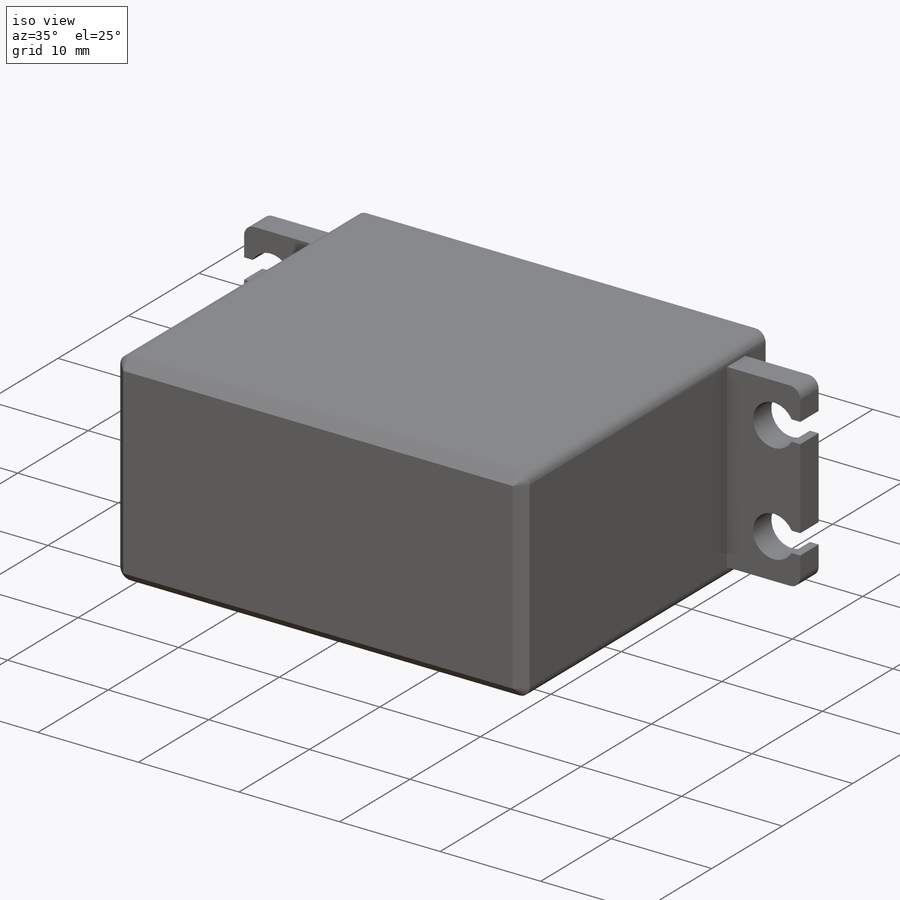
[diagram: iso view]
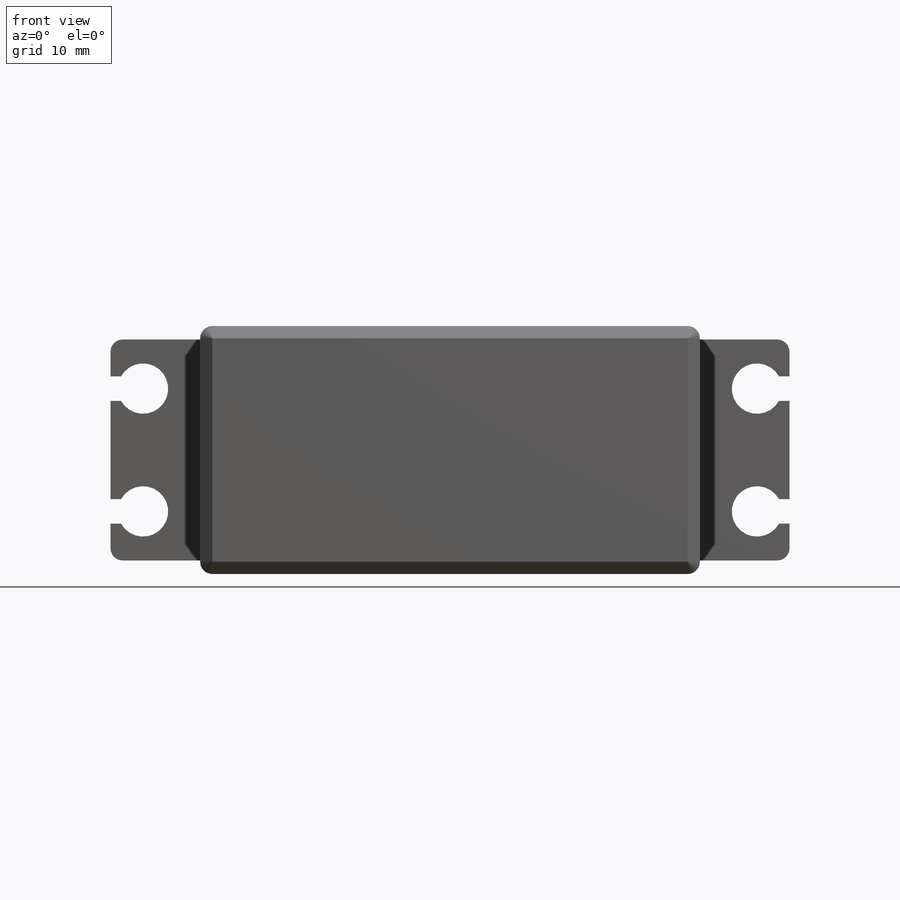
[diagram: front view]
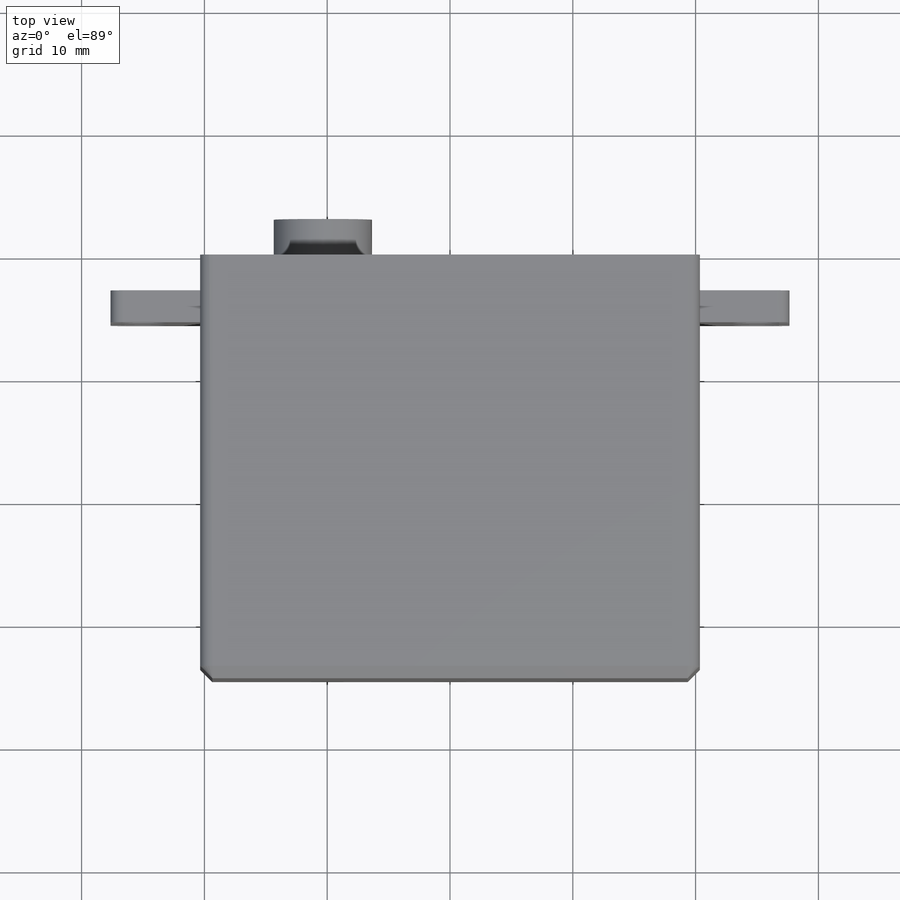
[diagram: top view]
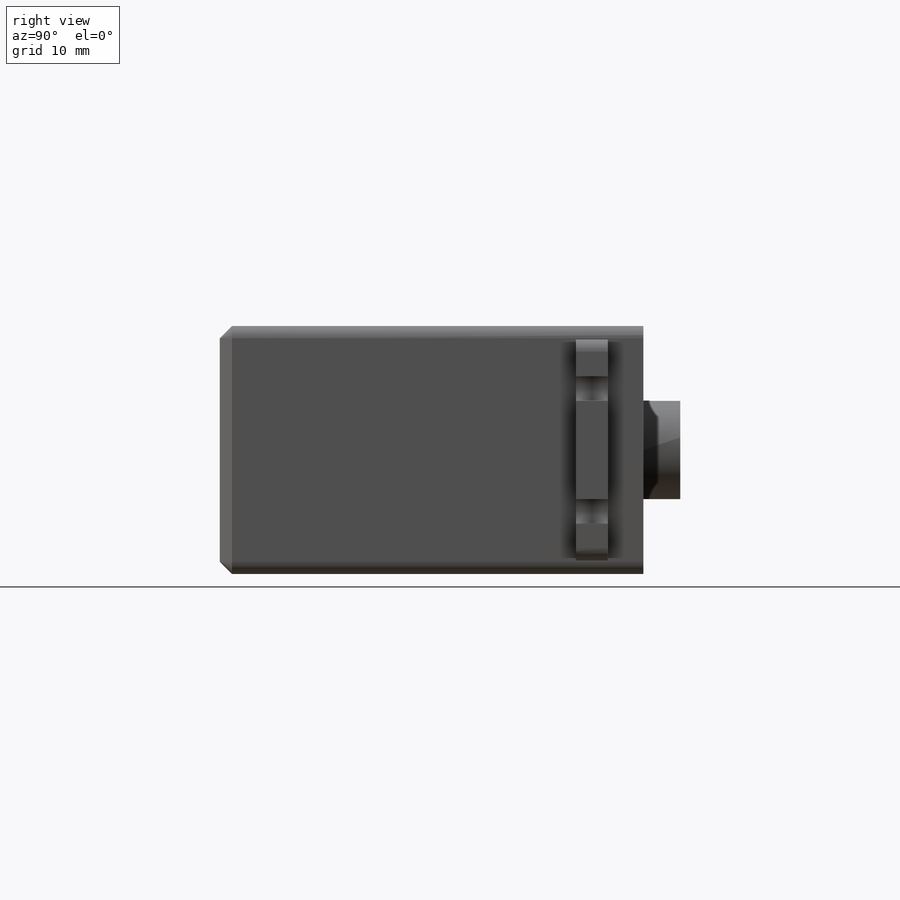
[diagram: right view]
SOLIDWORKS PART (.sldprt)
format: sldprt  version: not decoded by parser v0  size: 210,432 bytes
history: native  units: mm
features: sketch x3, extrude x3, fillet x2, material x1, plane x1, mirror x1, chamfer x1 (+11 scaffold rows collapsed)
feature tree (23):
  scaffold x11  (default folders/planes/origin — collapsed)
  material  "Material <not specified>"
  sketch  "Sketch1"  dims[c1.D1=~44.093494mm c1.D2=~108.201055mm c2.D1=~38.874574mm c2.D2=~82.51295mm c3.D1=20.2mm c3.D2=40.7mm]
  extrude  "Boss-Extrude1"  Depth=34.5mm
  plane  "Plane1"  Offset=29mm
  sketch  "Sketch2"  dims[D1=~1.350375mm D2=10.0mm D3=18.0mm D4=7.3mm D5=2.0mm D6=25.0mm]
  extrude  "Boss-Extrude2"  Depth=2.6mm
  fillet  "Fillet2"  Radius=1mm
  mirror  "Mirror1"
  fillet  "Fillet1"  Radius=1mm
  chamfer  "Chamfer1"  Distance=1mm Angle=45deg
  sketch  "Sketch3"  dims[D1=8.0mm D2=10.0mm]
  extrude  "Boss-Extrude3"  Depth=3mm
decode coverage: 9 of 10 modeling features carry decoded parameters
note: ~ marks probable driven/reference dimensions
note: suppression state not decoded; provenance and decode notes live in map.json
